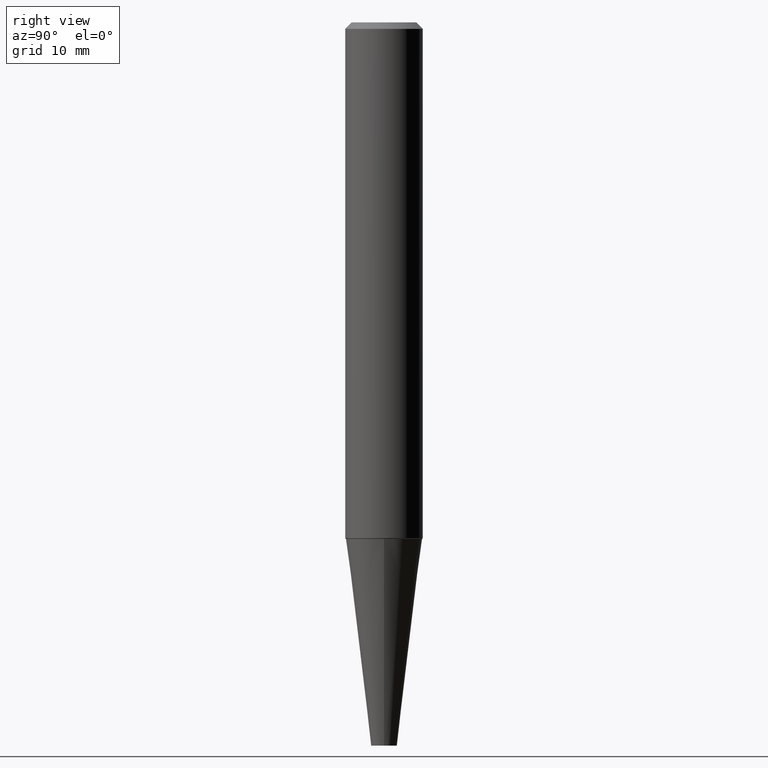
[diagram: clean part render]
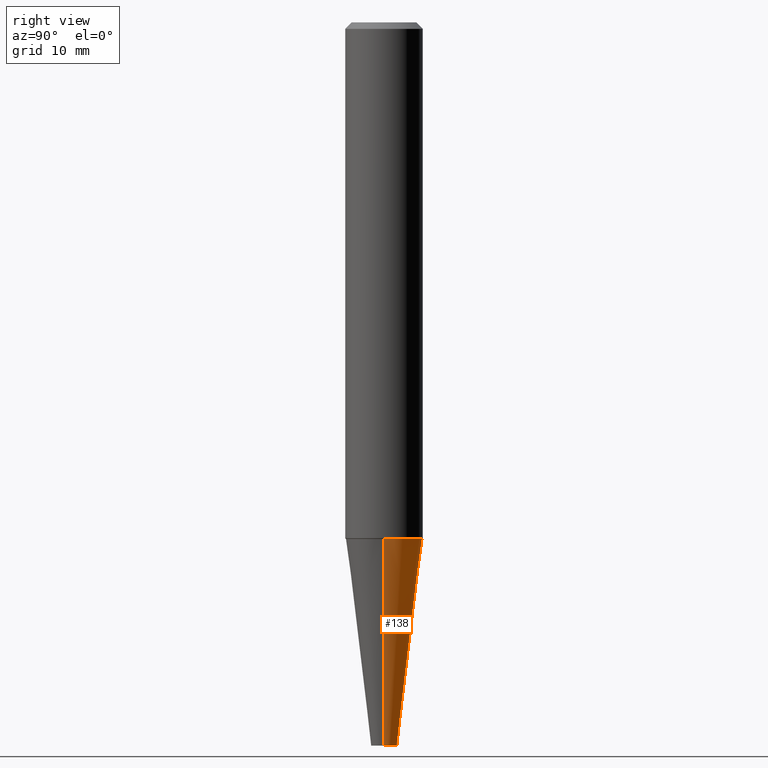
[diagram: same view with one face highlighted and labeled with its STEP entity id]
A machine part, right view. The second image highlights one B-rep face of the part: STEP entity #138.
In plain terms, the highlighted conical surface has half-angle 7 deg.
Its self-contained STEP definition (entity closure, byte-faithful):
#1 = DIRECTION ( 'NONE',  ( 1.000000000000000000, -6.982962677686269866E-15, 0.000000000000000000 ) ) ;
#29 = CARTESIAN_POINT ( 'NONE',  ( 0.1852845609028975771, -1.002253852064428481E-14, -2.500000000000000000 ) ) ;
#40 = DIRECTION ( 'NONE',  ( 1.000000000000000000, -6.982962677686262766E-15, 0.000000000000000000 ) ) ;
#44 = AXIS2_PLACEMENT_3D ( 'NONE', #105, #229, #40 ) ;
#58 = LINE ( 'NONE', #92, #159 ) ;
#66 = DIRECTION ( 'NONE',  ( 1.000000000000000000, -6.982962677686262766E-15, 0.000000000000000000 ) ) ;
#91 = ORIENTED_EDGE ( 'NONE', *, *, #286, .T. ) ;
#92 = CARTESIAN_POINT ( 'NONE',  ( 0.06250000000000000000, -1.265661985330639943E-14, -3.500000000000000000 ) ) ;
#95 = AXIS2_PLACEMENT_3D ( 'NONE', #414, #392, #66 ) ;
#105 = CARTESIAN_POINT ( 'NONE',  ( 8.559140821647976968E-29, -1.222018468595100934E-14, -3.500000000000000000 ) ) ;
#114 = AXIS2_PLACEMENT_3D ( 'NONE', #292, #166, #1 ) ;
#138 = ADVANCED_FACE ( 'NONE', ( #204 ), #193, .T. ) ;
#146 = EDGE_LOOP ( 'NONE', ( #362, #91, #213, #250 ) ) ;
#156 = EDGE_CURVE ( 'NONE', #398, #260, #314, .T. ) ;
#157 = CARTESIAN_POINT ( 'NONE',  ( 0.06250000000000000000, -1.265661985330639943E-14, -3.500000000000000000 ) ) ;
#159 = VECTOR ( 'NONE', #285, 39.37007874015748854 ) ;
#166 = DIRECTION ( 'NONE',  ( -2.445468806185136597E-29, 3.491481338843145583E-15, 1.000000000000000000 ) ) ;
#193 = CONICAL_SURFACE ( 'NONE', #44, 0.06250000000000000000, 0.1221730476395961884 ) ;
#198 = EDGE_CURVE ( 'NONE', #274, #247, #305, .T. ) ;
#204 = FACE_OUTER_BOUND ( 'NONE', #146, .T. ) ;
#213 = ORIENTED_EDGE ( 'NONE', *, *, #198, .F. ) ;
#229 = DIRECTION ( 'NONE',  ( -2.445468806185136597E-29, 3.491481338843145583E-15, 1.000000000000000000 ) ) ;
#247 = VERTEX_POINT ( 'NONE', #340 ) ;
#250 = ORIENTED_EDGE ( 'NONE', *, *, #298, .F. ) ;
#260 = VERTEX_POINT ( 'NONE', #280 ) ;
#261 = DIRECTION ( 'NONE',  ( -0.1218693434051406344, 4.331390133080014653E-15, 0.9925461516413227603 ) ) ;
#274 = VERTEX_POINT ( 'NONE', #29 ) ;
#280 = CARTESIAN_POINT ( 'NONE',  ( -0.06250000000000000000, -9.594136417614135936E-15, -3.500000000000000000 ) ) ;
#285 = DIRECTION ( 'NONE',  ( 0.1218693434051406344, 2.614447289844029388E-15, 0.9925461516413227603 ) ) ;
#286 = EDGE_CURVE ( 'NONE', #260, #247, #317, .T. ) ;
#292 = CARTESIAN_POINT ( 'NONE',  ( 6.113672015462842613E-29, -8.728703347107864943E-15, -2.500000000000000000 ) ) ;
#298 = EDGE_CURVE ( 'NONE', #398, #274, #58, .T. ) ;
#305 = CIRCLE ( 'NONE', #114, 0.1852845609028975771 ) ;
#314 = CIRCLE ( 'NONE', #95, 0.06250000000000000000 ) ;
#317 = LINE ( 'NONE', #345, #382 ) ;
#340 = CARTESIAN_POINT ( 'NONE',  ( -0.1852845609028975771, -7.412177359127328301E-15, -2.500000000000000000 ) ) ;
#345 = CARTESIAN_POINT ( 'NONE',  ( -0.06250000000000000000, -1.177609547610094673E-14, -3.500000000000000000 ) ) ;
#362 = ORIENTED_EDGE ( 'NONE', *, *, #156, .T. ) ;
#382 = VECTOR ( 'NONE', #261, 39.37007874015748854 ) ;
#392 = DIRECTION ( 'NONE',  ( -2.445468806185136597E-29, 3.491481338843145583E-15, 1.000000000000000000 ) ) ;
#398 = VERTEX_POINT ( 'NONE', #157 ) ;
#414 = CARTESIAN_POINT ( 'NONE',  ( 8.559140821647976968E-29, -1.222018468595100934E-14, -3.500000000000000000 ) ) ;